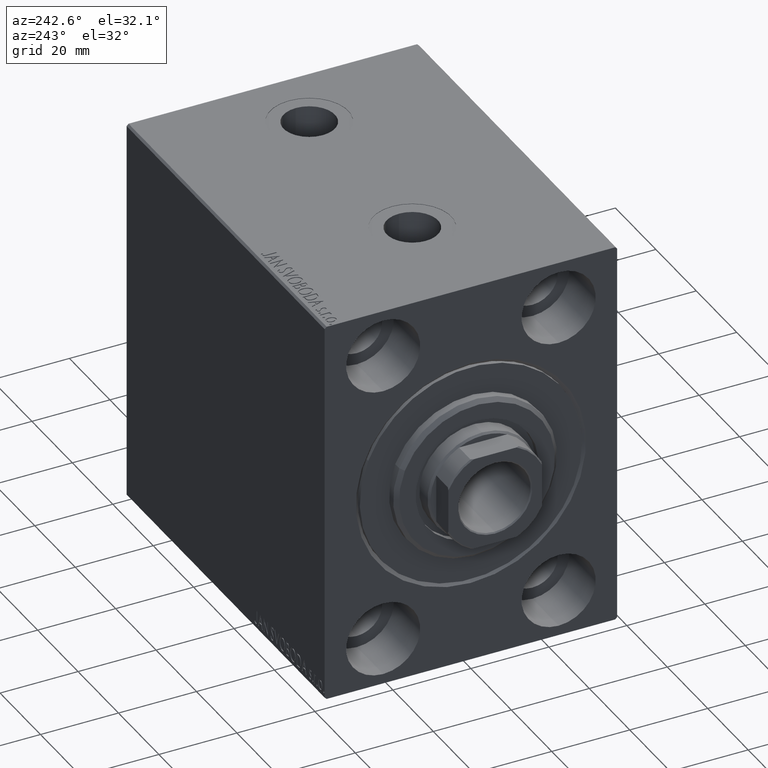
[diagram: clean part render]
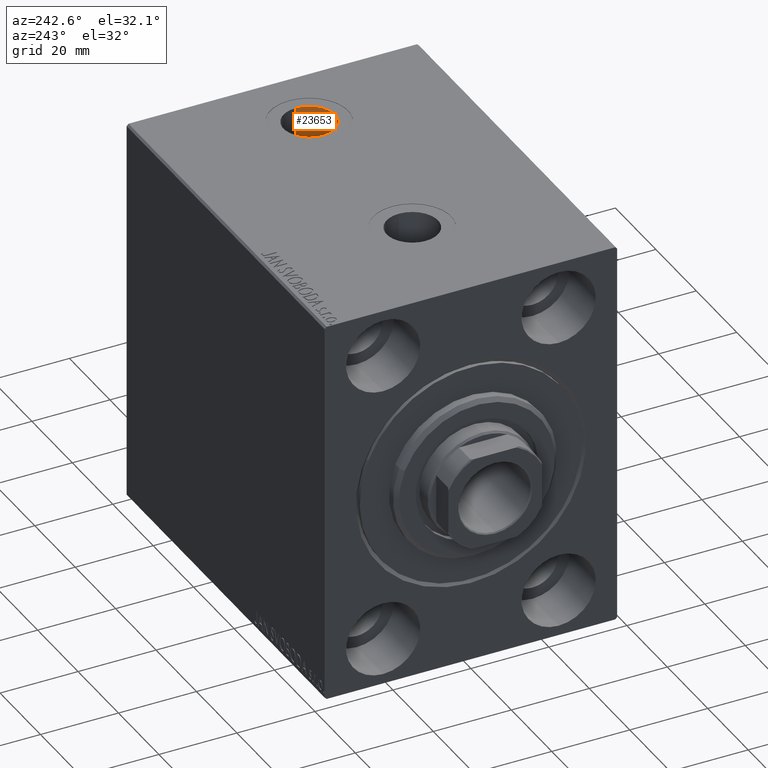
[diagram: same view with one face highlighted and labeled with its STEP entity id]
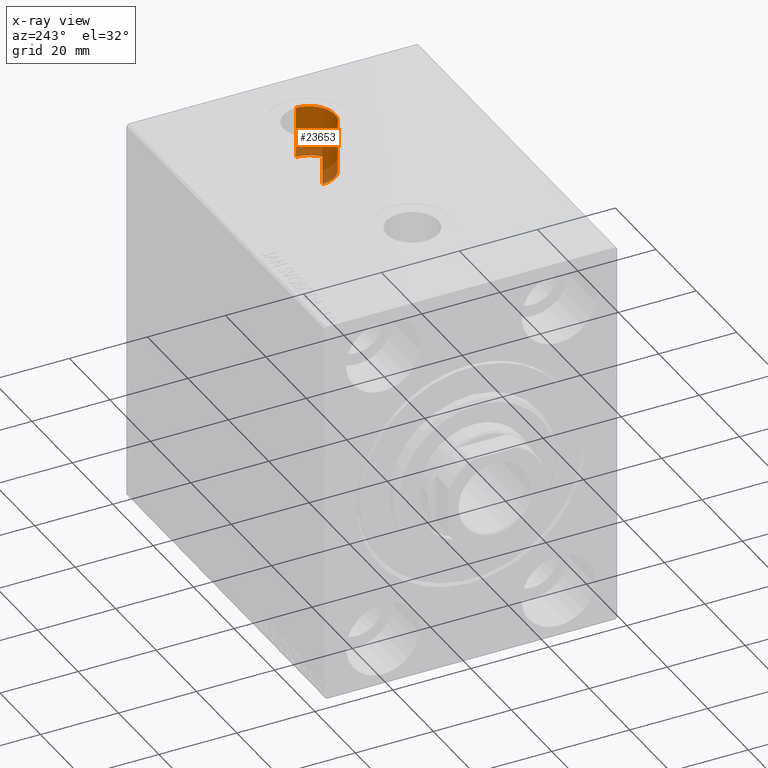
[diagram: x-ray of the same camera — body ghosted, the highlighted face saturated]
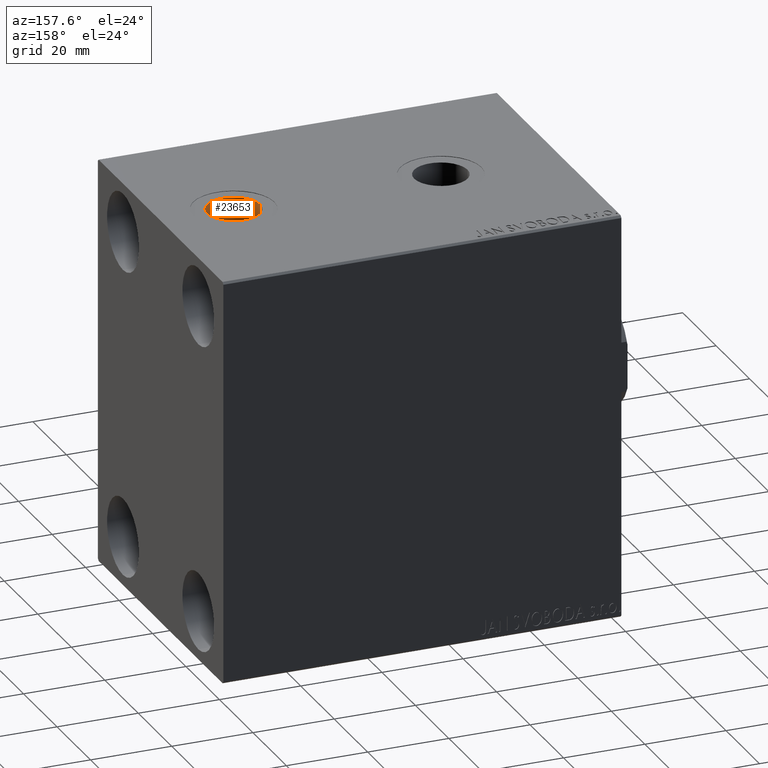
[diagram: same view with one face highlighted and labeled with its STEP entity id]
A machine part, auxiliary view. The second image highlights one B-rep face of the part: STEP entity #23653.
The next image is the same camera in x-ray: the body ghosted, the highlighted face saturated — about 26% of this face is hidden behind the body in this view.
A second angle (auxiliary view) of the same face is appended — the face is thin or edge-on in the first view.
In plain terms, the highlighted cylindrical surface (edge-blend (fillet) strip) has radius 6.58 mm, axis along (0, 0, 1).
Its self-contained STEP definition (entity closure, byte-faithful):
#1314 = DIRECTION ( 'NONE',  ( 1.000000000000000000, 0.000000000000000000, 0.000000000000000000 ) ) ;
#1535 = CARTESIAN_POINT ( 'NONE',  ( 80.00000000000001421, -9.251858538542973800E-15, 36.74000000000000199 ) ) ;
#1696 = CARTESIAN_POINT ( 'NONE',  ( 86.58000000000001251, -9.251858538542973800E-15, 36.74000000000000199 ) ) ;
#2250 = CYLINDRICAL_SURFACE ( 'NONE', #12971, 6.580000000000002736 ) ;
#3258 = ORIENTED_EDGE ( 'NONE', *, *, #24110, .F. ) ;
#5323 = DIRECTION ( 'NONE',  ( 1.000000000000000000, 0.000000000000000000, 0.000000000000000000 ) ) ;
#5775 = CARTESIAN_POINT ( 'NONE',  ( 80.00000000000001421, -9.251858538542973800E-15, 49.89999999999999858 ) ) ;
#6972 = EDGE_CURVE ( 'NONE', #26794, #20233, #16600, .T. ) ;
#8057 = CARTESIAN_POINT ( 'NONE',  ( 80.00000000000001421, -9.251858538542973800E-15, 36.74000000000000199 ) ) ;
#8383 = LINE ( 'NONE', #1696, #30105 ) ;
#10520 = CIRCLE ( 'NONE', #35455, 6.580000000000002736 ) ;
#12971 = AXIS2_PLACEMENT_3D ( 'NONE', #8057, #15179, #22325 ) ;
#13376 = EDGE_LOOP ( 'NONE', ( #18359, #31531, #30698, #3258 ) ) ;
#15003 = VERTEX_POINT ( 'NONE', #16535 ) ;
#15179 = DIRECTION ( 'NONE',  ( -0.000000000000000000, -0.000000000000000000, 1.000000000000000000 ) ) ;
#16535 = CARTESIAN_POINT ( 'NONE',  ( 86.58000000000001251, -9.251858538542973800E-15, 36.74000000000000199 ) ) ;
#16600 = LINE ( 'NONE', #37764, #34744 ) ;
#18039 = AXIS2_PLACEMENT_3D ( 'NONE', #1535, #41672, #1314 ) ;
#18359 = ORIENTED_EDGE ( 'NONE', *, *, #27565, .F. ) ;
#20233 = VERTEX_POINT ( 'NONE', #30541 ) ;
#21474 = CARTESIAN_POINT ( 'NONE',  ( 86.58000000000001251, -9.251858538542973800E-15, 49.89999999999999858 ) ) ;
#22325 = DIRECTION ( 'NONE',  ( 1.000000000000000000, 0.000000000000000000, 0.000000000000000000 ) ) ;
#23653 = ADVANCED_FACE ( 'NONE', ( #36125 ), #2250, .F. ) ;
#24110 = EDGE_CURVE ( 'NONE', #15003, #35627, #8383, .T. ) ;
#26216 = DIRECTION ( 'NONE',  ( -0.000000000000000000, -0.000000000000000000, 1.000000000000000000 ) ) ;
#26794 = VERTEX_POINT ( 'NONE', #39417 ) ;
#27565 = EDGE_CURVE ( 'NONE', #26794, #15003, #30860, .T. ) ;
#30105 = VECTOR ( 'NONE', #26216, 1000.000000000000000 ) ;
#30541 = CARTESIAN_POINT ( 'NONE',  ( 73.42000000000001592, -8.446040944704014758E-15, 49.89999999999999858 ) ) ;
#30698 = ORIENTED_EDGE ( 'NONE', *, *, #33166, .T. ) ;
#30860 = CIRCLE ( 'NONE', #18039, 6.580000000000002736 ) ;
#30868 = DIRECTION ( 'NONE',  ( -0.000000000000000000, -0.000000000000000000, 1.000000000000000000 ) ) ;
#31531 = ORIENTED_EDGE ( 'NONE', *, *, #6972, .T. ) ;
#33166 = EDGE_CURVE ( 'NONE', #20233, #35627, #10520, .T. ) ;
#34744 = VECTOR ( 'NONE', #30868, 1000.000000000000000 ) ;
#35455 = AXIS2_PLACEMENT_3D ( 'NONE', #5775, #42554, #5323 ) ;
#35627 = VERTEX_POINT ( 'NONE', #21474 ) ;
#36125 = FACE_OUTER_BOUND ( 'NONE', #13376, .T. ) ;
#37764 = CARTESIAN_POINT ( 'NONE',  ( 73.42000000000001592, -8.446040944704014758E-15, 36.74000000000000199 ) ) ;
#39417 = CARTESIAN_POINT ( 'NONE',  ( 73.42000000000001592, -8.446040944704014758E-15, 36.74000000000000199 ) ) ;
#41672 = DIRECTION ( 'NONE',  ( 0.000000000000000000, 0.000000000000000000, 1.000000000000000000 ) ) ;
#42554 = DIRECTION ( 'NONE',  ( 0.000000000000000000, 0.000000000000000000, 1.000000000000000000 ) ) ;